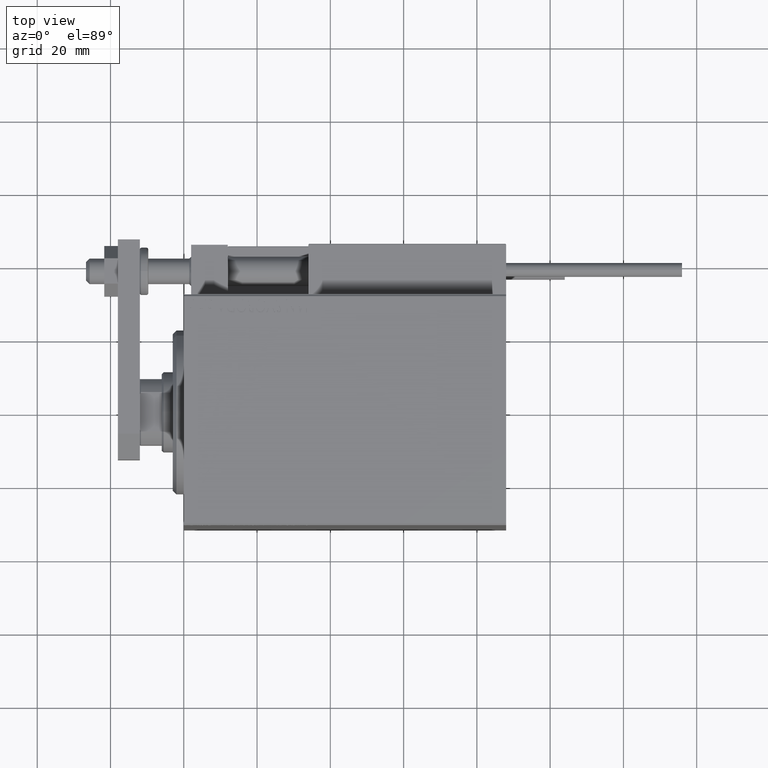
[diagram: clean part render]
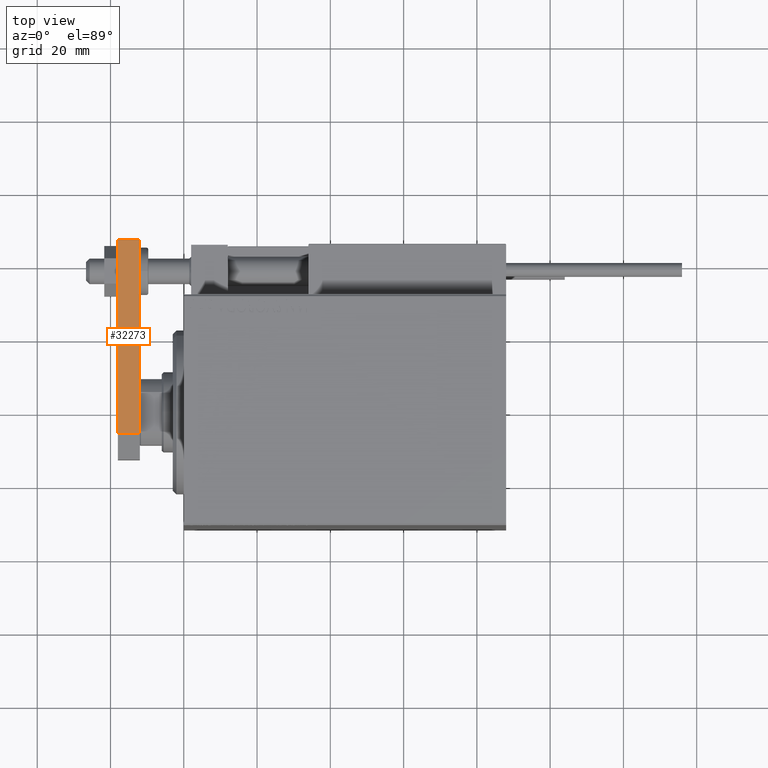
[diagram: same view with one face highlighted and labeled with its STEP entity id]
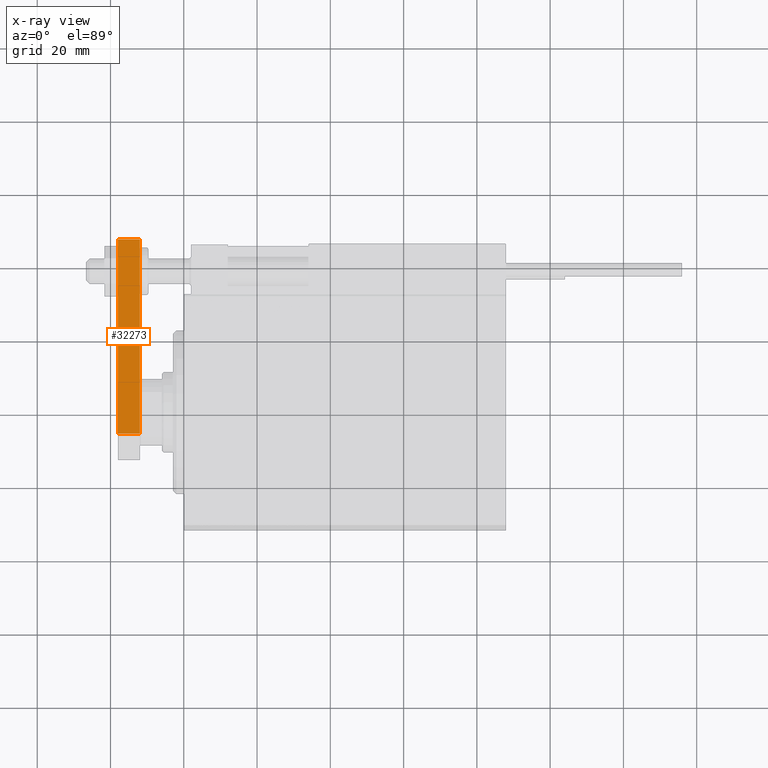
[diagram: x-ray of the same camera — body ghosted, the highlighted face saturated]
A machine part, top view. The second image highlights one B-rep face of the part: STEP entity #32273.
The next image is the same camera in x-ray: the body ghosted, the highlighted face saturated — about 0% of this face is hidden behind the body in this view.
In plain terms, the highlighted planar face has unit normal (0, 0, -1).
Its self-contained STEP definition (entity closure, byte-faithful):
#76 = CARTESIAN_POINT ( 'NONE',  ( 12.50000000000000355, 60.00000000000000000, 0.000000000000000000 ) ) ;
#2610 = LINE ( 'NONE', #37791, #17291 ) ;
#5208 = CARTESIAN_POINT ( 'NONE',  ( 12.50000000000000355, 7.000000000000006217, 6.000000000000000000 ) ) ;
#7114 = CARTESIAN_POINT ( 'NONE',  ( 12.50000000000000355, 7.000000000000006217, 6.000000000000000000 ) ) ;
#9522 = ORIENTED_EDGE ( 'NONE', *, *, #18733, .T. ) ;
#10012 = LINE ( 'NONE', #5208, #43826 ) ;
#11192 = EDGE_LOOP ( 'NONE', ( #47000, #9522, #26017, #21016 ) ) ;
#12860 = VERTEX_POINT ( 'NONE', #7114 ) ;
#14459 = DIRECTION ( 'NONE',  ( -0.000000000000000000, -0.000000000000000000, -1.000000000000000000 ) ) ;
#14949 = CARTESIAN_POINT ( 'NONE',  ( 12.50000000000000355, 60.00000000000000000, 6.000000000000000000 ) ) ;
#15833 = VERTEX_POINT ( 'NONE', #76 ) ;
#16994 = CARTESIAN_POINT ( 'NONE',  ( 12.50000000000000355, 60.00000000000000000, 6.000000000000000000 ) ) ;
#17194 = DIRECTION ( 'NONE',  ( -1.000000000000000000, 0.000000000000000000, 0.000000000000000000 ) ) ;
#17291 = VECTOR ( 'NONE', #29705, 1000.000000000000000 ) ;
#18733 = EDGE_CURVE ( 'NONE', #12860, #30426, #10012, .T. ) ;
#21016 = ORIENTED_EDGE ( 'NONE', *, *, #27478, .F. ) ;
#22320 = AXIS2_PLACEMENT_3D ( 'NONE', #44790, #17194, #36688 ) ;
#22921 = EDGE_CURVE ( 'NONE', #12860, #49885, #23839, .T. ) ;
#23568 = CARTESIAN_POINT ( 'NONE',  ( 12.50000000000000355, 7.000000000000006217, 0.000000000000000000 ) ) ;
#23839 = LINE ( 'NONE', #49943, #32665 ) ;
#26017 = ORIENTED_EDGE ( 'NONE', *, *, #26180, .T. ) ;
#26180 = EDGE_CURVE ( 'NONE', #30426, #15833, #2610, .T. ) ;
#27478 = EDGE_CURVE ( 'NONE', #49885, #15833, #37483, .T. ) ;
#29705 = DIRECTION ( 'NONE',  ( 0.000000000000000000, 1.000000000000000000, 0.000000000000000000 ) ) ;
#30426 = VERTEX_POINT ( 'NONE', #23568 ) ;
#31864 = VECTOR ( 'NONE', #14459, 1000.000000000000000 ) ;
#32273 = ADVANCED_FACE ( 'NONE', ( #39991 ), #40498, .F. ) ;
#32665 = VECTOR ( 'NONE', #34242, 1000.000000000000000 ) ;
#34242 = DIRECTION ( 'NONE',  ( 0.000000000000000000, 1.000000000000000000, 0.000000000000000000 ) ) ;
#36688 = DIRECTION ( 'NONE',  ( 0.000000000000000000, 0.000000000000000000, 1.000000000000000000 ) ) ;
#37483 = LINE ( 'NONE', #14949, #31864 ) ;
#37791 = CARTESIAN_POINT ( 'NONE',  ( 12.50000000000000355, 4.814824860968089633E-32, 0.000000000000000000 ) ) ;
#39991 = FACE_OUTER_BOUND ( 'NONE', #11192, .T. ) ;
#40498 = PLANE ( 'NONE',  #22320 ) ;
#43826 = VECTOR ( 'NONE', #47748, 1000.000000000000000 ) ;
#44790 = CARTESIAN_POINT ( 'NONE',  ( 12.50000000000000355, 4.814824860968089633E-32, 6.000000000000000000 ) ) ;
#47000 = ORIENTED_EDGE ( 'NONE', *, *, #22921, .F. ) ;
#47748 = DIRECTION ( 'NONE',  ( 0.000000000000000000, 0.000000000000000000, -1.000000000000000000 ) ) ;
#49885 = VERTEX_POINT ( 'NONE', #16994 ) ;
#49943 = CARTESIAN_POINT ( 'NONE',  ( 12.50000000000000355, 4.814824860968089633E-32, 6.000000000000000000 ) ) ;